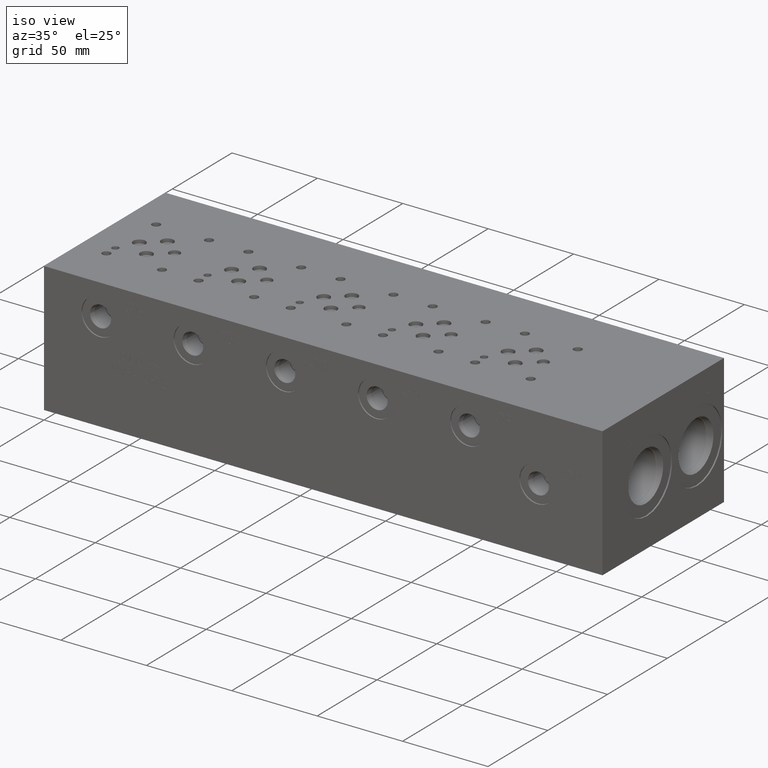
[diagram: clean part render]
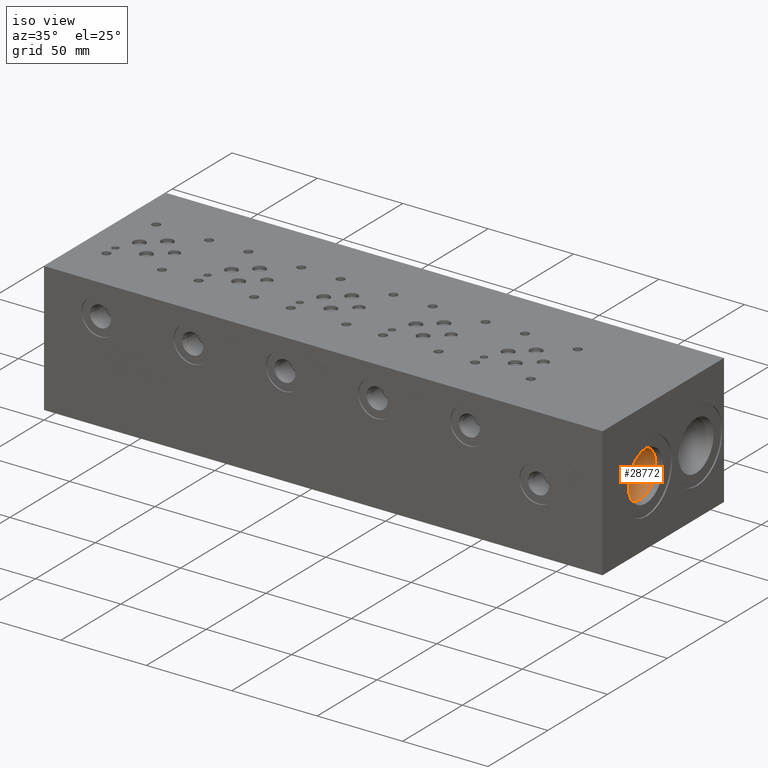
[diagram: same view with one face highlighted and labeled with its STEP entity id]
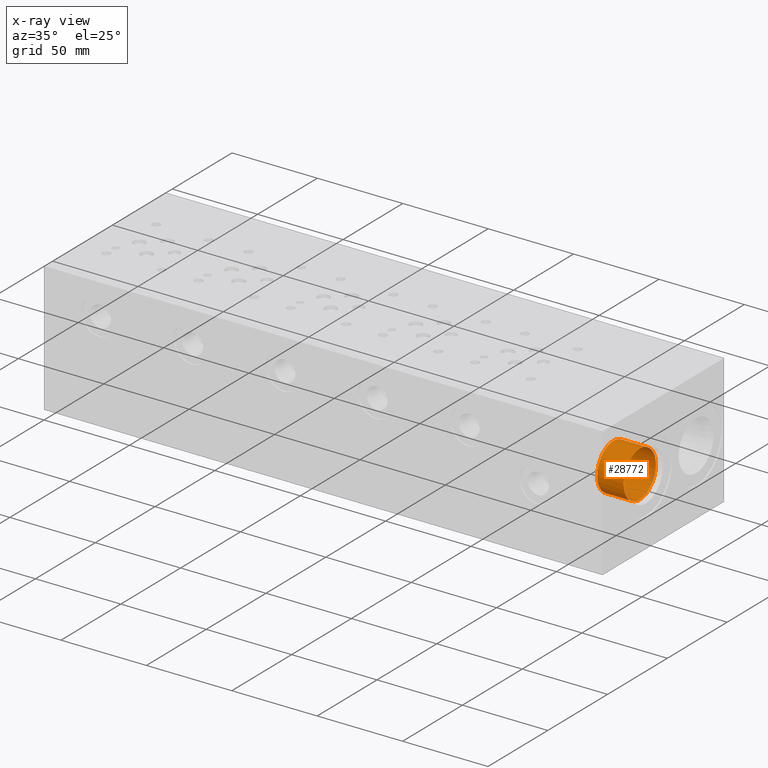
[diagram: x-ray of the same camera — body ghosted, the highlighted face saturated]
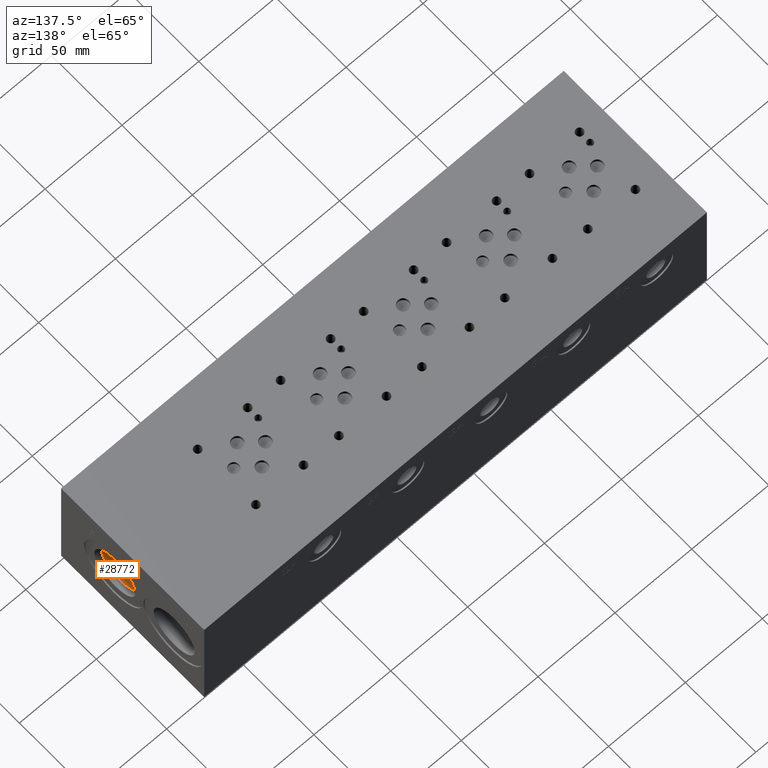
[diagram: same view with one face highlighted and labeled with its STEP entity id]
A machine part, iso view. The second image highlights one B-rep face of the part: STEP entity #28772.
The next image is the same camera in x-ray: the body ghosted, the highlighted face saturated — about 0% of this face is hidden behind the body in this view.
A second angle (auxiliary view) of the same face is appended — the face is thin or edge-on in the first view.
In plain terms, the highlighted cylindrical surface (bore or boss wall) has radius 13.495 mm, axis along (1, 0, 0).
Its self-contained STEP definition (entity closure, byte-faithful):
#85=CYLINDRICAL_SURFACE('',#30183,13.495);
#674=CIRCLE('',#30153,13.495);
#675=CIRCLE('',#30154,13.495);
#691=CIRCLE('',#30180,13.495);
#692=CIRCLE('',#30181,13.495);
#3317=FACE_OUTER_BOUND('',#4985,.T.);
#4985=EDGE_LOOP('',(#24558,#24559,#24560,#24561,#24562,#24563));
#7554=LINE('',#49744,#9962);
#9962=VECTOR('',#35299,13.495);
#13407=VERTEX_POINT('',#49682);
#13408=VERTEX_POINT('',#49684);
#13426=VERTEX_POINT('',#49737);
#13427=VERTEX_POINT('',#49738);
#17261=EDGE_CURVE('',#13408,#13407,#674,.T.);
#17262=EDGE_CURVE('',#13407,#13408,#675,.T.);
#17286=EDGE_CURVE('',#13426,#13427,#691,.T.);
#17287=EDGE_CURVE('',#13427,#13426,#692,.T.);
#17289=EDGE_CURVE('',#13408,#13427,#7554,.T.);
#24558=ORIENTED_EDGE('',*,*,#17261,.T.);
#24559=ORIENTED_EDGE('',*,*,#17262,.T.);
#24560=ORIENTED_EDGE('',*,*,#17289,.T.);
#24561=ORIENTED_EDGE('',*,*,#17286,.F.);
#24562=ORIENTED_EDGE('',*,*,#17287,.F.);
#24563=ORIENTED_EDGE('',*,*,#17289,.F.);
#28772=ADVANCED_FACE('',(#3317),#85,.F.);
#30153=AXIS2_PLACEMENT_3D('',#49685,#35229,#35230);
#30154=AXIS2_PLACEMENT_3D('',#49686,#35231,#35232);
#30180=AXIS2_PLACEMENT_3D('',#49739,#35291,#35292);
#30181=AXIS2_PLACEMENT_3D('',#49740,#35293,#35294);
#30183=AXIS2_PLACEMENT_3D('',#49743,#35297,#35298);
#35229=DIRECTION('center_axis',(1.,0.,0.));
#35230=DIRECTION('ref_axis',(0.,1.,0.));
#35231=DIRECTION('center_axis',(1.,0.,0.));
#35232=DIRECTION('ref_axis',(0.,1.,0.));
#35291=DIRECTION('center_axis',(1.,0.,0.));
#35292=DIRECTION('ref_axis',(0.,1.,0.));
#35293=DIRECTION('center_axis',(1.,0.,0.));
#35294=DIRECTION('ref_axis',(0.,1.,0.));
#35297=DIRECTION('center_axis',(1.,0.,0.));
#35298=DIRECTION('ref_axis',(0.,1.,0.));
#35299=DIRECTION('',(-1.,0.,0.));
#49682=CARTESIAN_POINT('',(322.74,37.3126,51.595));
#49684=CARTESIAN_POINT('',(322.74,23.8176,38.1));
#49685=CARTESIAN_POINT('Origin',(322.74,37.3126,38.1));
#49686=CARTESIAN_POINT('Origin',(322.74,37.3126,38.1));
#49737=CARTESIAN_POINT('',(307.1876,50.8076,38.1));
#49738=CARTESIAN_POINT('',(307.1876,23.8176,38.1));
#49739=CARTESIAN_POINT('Origin',(307.1876,37.3126,38.1));
#49740=CARTESIAN_POINT('Origin',(307.1876,37.3126,38.1));
#49743=CARTESIAN_POINT('Origin',(317.1063,37.3126,38.1));
#49744=CARTESIAN_POINT('',(317.1063,23.8176,38.1));